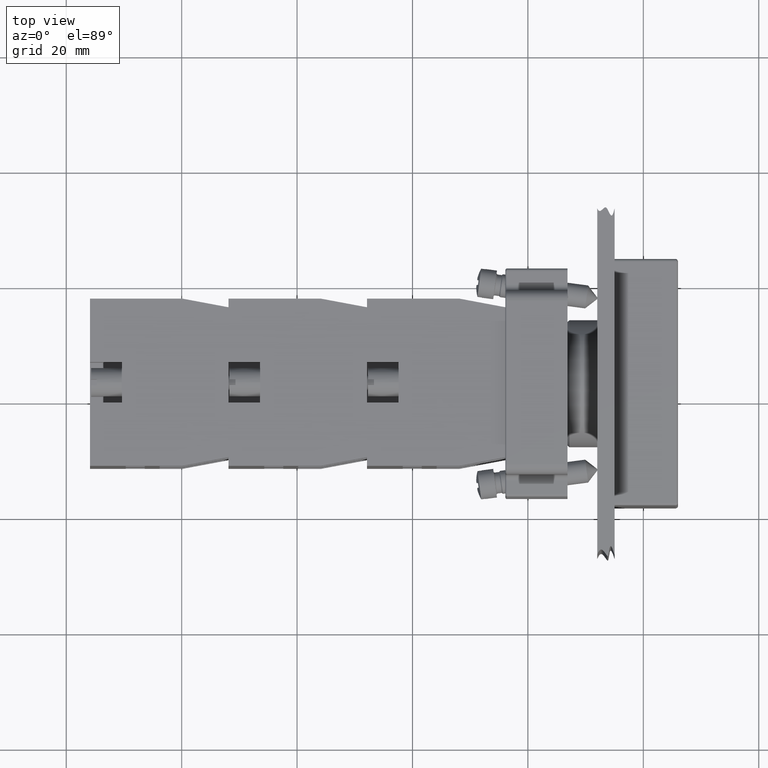
[diagram: clean part render]
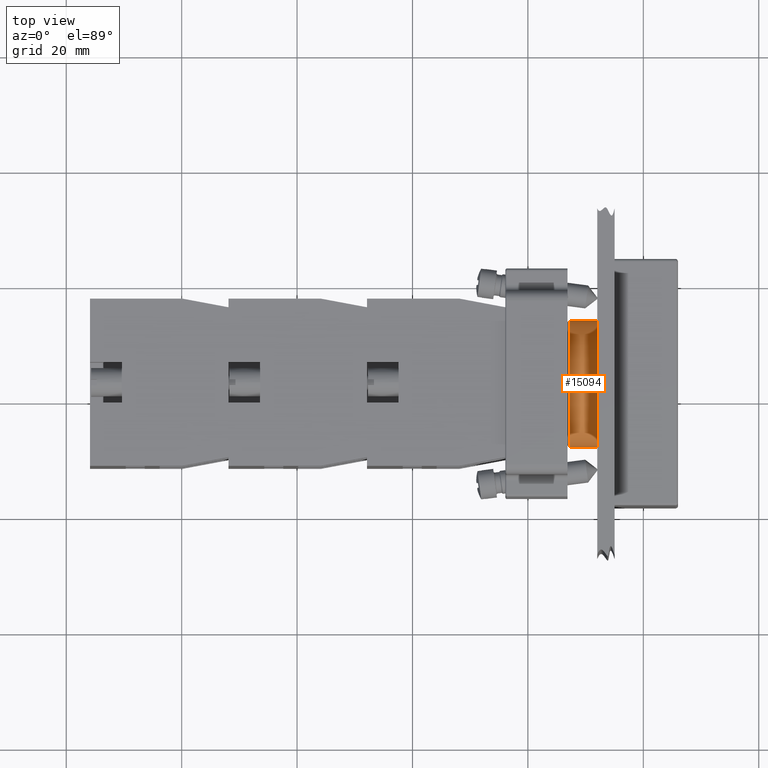
[diagram: same view with one face highlighted and labeled with its STEP entity id]
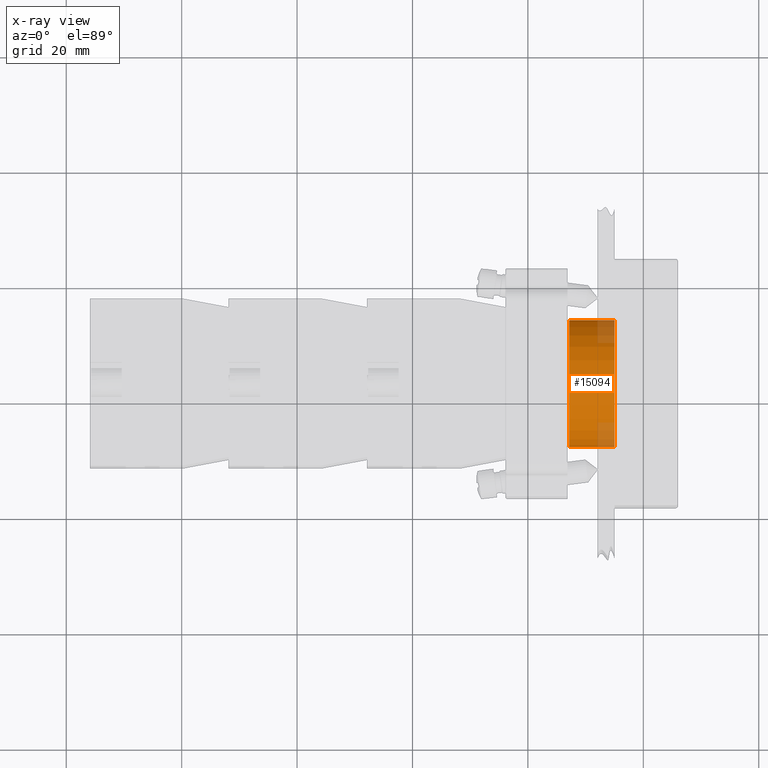
[diagram: x-ray of the same camera — body ghosted, the highlighted face saturated]
A machine part, top view. The second image highlights one B-rep face of the part: STEP entity #15094.
The next image is the same camera in x-ray: the body ghosted, the highlighted face saturated — about 14% of this face is hidden behind the body in this view.
In plain terms, the highlighted cylindrical surface (bore or boss wall) has radius 11 mm, axis along (1, -0, 0).
Its self-contained STEP definition (entity closure, byte-faithful):
#14991=CARTESIAN_POINT('',(-8.439384027103657,-11.031685679495357,1.347067E-015));
#14992=VERTEX_POINT('',#14991);
#14993=CARTESIAN_POINT('',(-8.439384027103657,-0.031685679495357,0.0));
#14994=DIRECTION('',(-1.0,0.0,0.0));
#14995=DIRECTION('',(0.0,1.0,0.0));
#14996=AXIS2_PLACEMENT_3D('',#14993,#14994,#14995);
#14997=CIRCLE('',#14996,11.0);
#14998=EDGE_CURVE('',#14992,#14992,#14997,.T.);
#15068=CARTESIAN_POINT('',(-16.251513745922896,10.968314320504646,0.0));
#15069=VERTEX_POINT('',#15068);
#15070=CARTESIAN_POINT('',(-16.251513745922896,-0.031685679495357,0.0));
#15071=DIRECTION('',(1.0,0.0,0.0));
#15072=DIRECTION('',(0.0,1.0,0.0));
#15073=AXIS2_PLACEMENT_3D('',#15070,#15071,#15072);
#15074=CIRCLE('',#15073,11.000000000000004);
#15075=EDGE_CURVE('',#15069,#15069,#15074,.T.);
#15083=CARTESIAN_POINT('',(-8.251513745922898,-0.031685679495357,0.0));
#15084=DIRECTION('',(1.0,-9.219481E-019,0.0));
#15085=DIRECTION('',(0.0,1.0,0.0));
#15086=AXIS2_PLACEMENT_3D('',#15083,#15084,#15085);
#15087=CYLINDRICAL_SURFACE('',#15086,11.0);
#15088=ORIENTED_EDGE('',*,*,#14998,.T.);
#15089=EDGE_LOOP('',(#15088));
#15090=FACE_OUTER_BOUND('',#15089,.T.);
#15091=ORIENTED_EDGE('',*,*,#15075,.T.);
#15092=EDGE_LOOP('',(#15091));
#15093=FACE_BOUND('',#15092,.T.);
#15094=ADVANCED_FACE('',(#15090,#15093),#15087,.T.);